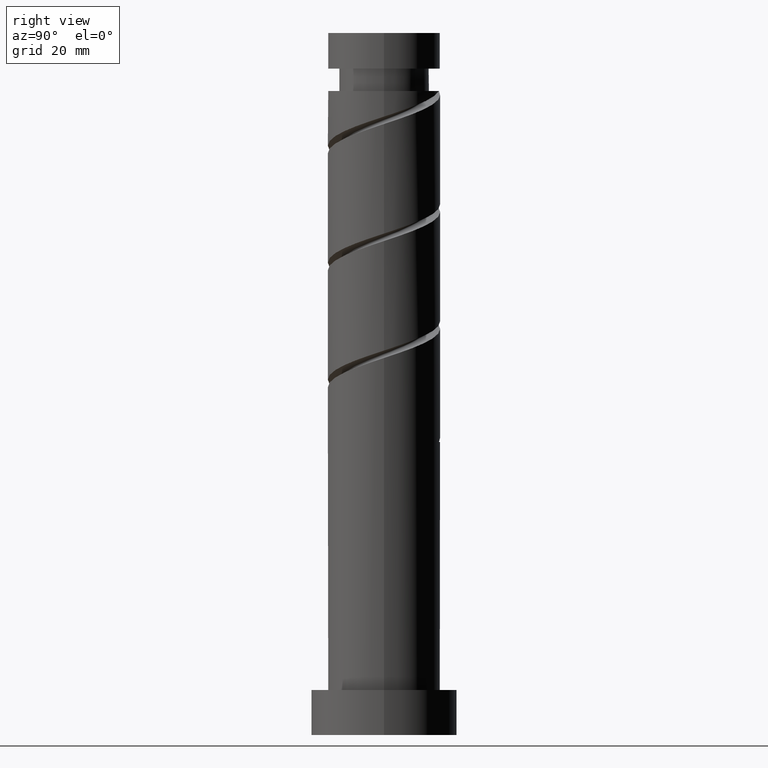
[diagram: clean part render]
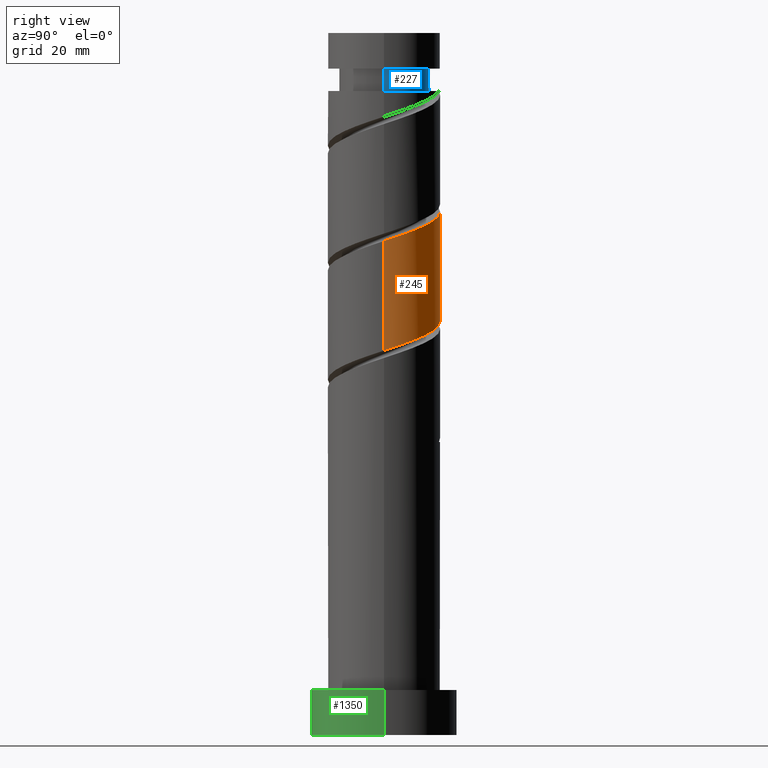
[diagram: same view with three faces highlighted in distinct colors, each labeled with its STEP entity id]
A machine part, right view with three faces highlighted in distinct colors.
Their STEP definitions:

[orange] entity #245 — the highlighted cylindrical surface (partial cylindrical patch) has radius 10 mm, axis along (-0, -0, -1).
#4 = CARTESIAN_POINT ( 'NONE',  ( -9.755398771694949289, 2.709383306013496195, 97.48807990629018150 ) ) ;
#13 = CARTESIAN_POINT ( 'NONE',  ( -3.542142389393700075, 9.484818943287860904, 94.36307990629019571 ) ) ;
#21 = CARTESIAN_POINT ( 'NONE',  ( 1.135787973490359315, 9.935289914203561779, 92.80057990629019571 ) ) ;
#77 = ORIENTED_EDGE ( 'NONE', *, *, #1460, .F. ) ;
#86 = ORIENTED_EDGE ( 'NONE', *, *, #1148, .T. ) ;
#114 = EDGE_CURVE ( 'NONE', #551, #649, #192, .T. ) ;
#119 = CARTESIAN_POINT ( 'NONE',  ( 4.920945116258620189, 8.705417805181468793, 71.96724657295688132 ) ) ;
#160 = CYLINDRICAL_SURFACE ( 'NONE', #733, 10.00000000000000178 ) ;
#192 = LINE ( 'NONE', #1348, #1372 ) ;
#208 = CARTESIAN_POINT ( 'NONE',  ( -1.135787973490353542, 9.935289914203549344, 74.05057990629022413 ) ) ;
#212 = CARTESIAN_POINT ( 'NONE',  ( 10.00000000000001776, 8.815944436524987467E-15, 87.96911079815328094 ) ) ;
#231 = CARTESIAN_POINT ( 'NONE',  ( -10.00000000000000711, 1.271415116015856806E-14, 78.88204901442713890 ) ) ;
#242 = CARTESIAN_POINT ( 'NONE',  ( 10.00000000000001776, 1.005037815259217204, 88.30341537356112269 ) ) ;
#245 = ADVANCED_FACE ( 'NONE', ( #1498 ), #160, .T. ) ;
#253 = CARTESIAN_POINT ( 'NONE',  ( 10.00000000000001954, 8.815944436524987467E-15, 87.96911079815328094 ) ) ;
#271 = CARTESIAN_POINT ( 'NONE',  ( 10.00000000000000355, 0.5697373744643341453, 68.65489343696776814 ) ) ;
#276 = ORIENTED_EDGE ( 'NONE', *, *, #1575, .F. ) ;
#296 = LINE ( 'NONE', #1388, #950 ) ;
#317 = CARTESIAN_POINT ( 'NONE',  ( -9.484818943287846693, 3.542142389393697854, 77.69641323962355273 ) ) ;
#326 = CARTESIAN_POINT ( 'NONE',  ( -2.709383306013491755, 9.755398771694942184, 74.57141323962352430 ) ) ;
#328 = EDGE_LOOP ( 'NONE', ( #276, #86, #77, #1063 ) ) ;
#361 = CARTESIAN_POINT ( 'NONE',  ( -6.299747843123544300, 7.926016667075098887, 95.40474657295686711 ) ) ;
#380 = CARTESIAN_POINT ( 'NONE',  ( 6.758688661379387952, 7.370218964083908197, 90.71724657295690974 ) ) ;
#390 = VERTEX_POINT ( 'NONE', #212 ) ;
#398 = CARTESIAN_POINT ( 'NONE',  ( 7.370218964083903757, 6.758688661379372853, 70.92557990629022413 ) ) ;
#422 = CARTESIAN_POINT ( 'NONE',  ( -6.758688661379372853, 7.370218964083900204, 76.13391323962355273 ) ) ;
#447 = DIRECTION ( 'NONE',  ( -1.000000000000000000, 0.000000000000000000, 0.000000000000000000 ) ) ;
#453 = CARTESIAN_POINT ( 'NONE',  ( -10.00000000000000355, 1.005037815259219869, 78.54774443901931136 ) ) ;
#497 = CARTESIAN_POINT ( 'NONE',  ( -7.370218964083909086, 6.758688661379384399, 95.92557990629020992 ) ) ;
#513 = CARTESIAN_POINT ( 'NONE',  ( -0.4378073590327820064, 10.11518105671217072, 93.32141323962352430 ) ) ;
#520 = DIRECTION ( 'NONE',  ( -0.000000000000000000, -0.000000000000000000, -1.000000000000000000 ) ) ;
#524 = CARTESIAN_POINT ( 'NONE',  ( 5.591360655683670799, 8.440690085044266766, 91.23807990629018150 ) ) ;
#551 = VERTEX_POINT ( 'NONE', #1196 ) ;
#585 = DIRECTION ( 'NONE',  ( -0.000000000000000000, -0.000000000000000000, -1.000000000000000000 ) ) ;
#622 = CARTESIAN_POINT ( 'NONE',  ( 1.989974874213245259, 9.800000000000004263, 73.00891323962353852 ) ) ;
#636 = CARTESIAN_POINT ( 'NONE',  ( -9.935289914203560002, 1.135787973490356872, 98.00891323962355273 ) ) ;
#649 = VERTEX_POINT ( 'NONE', #231 ) ;
#688 = CARTESIAN_POINT ( 'NONE',  ( -4.150371980848577280, 9.098044428369597370, 75.09224657295686711 ) ) ;
#697 = CARTESIAN_POINT ( 'NONE',  ( 0.4378073590327857256, 10.11518105671215473, 73.52974657295690974 ) ) ;
#729 = DIRECTION ( 'NONE',  ( -0.000000000000000000, -0.000000000000000000, -1.000000000000000000 ) ) ;
#733 = AXIS2_PLACEMENT_3D ( 'NONE', #831, #585, #447 ) ;
#739 = CARTESIAN_POINT ( 'NONE',  ( 8.440690085044259661, 5.591360655683659253, 70.40474657295685290 ) ) ;
#748 = CARTESIAN_POINT ( 'NONE',  ( 3.542142389393699187, 9.484818943287846693, 72.48807990629020992 ) ) ;
#754 =( BOUNDED_CURVE ( )  B_SPLINE_CURVE ( 2, ( #937, #453, #1416, #317, #809, #1040, #422, #916, #688, #326, #208, #697, #622, #748, #119, #1370, #398, #739, #1103, #1356, #1347, #271, #1234 ),
 .UNSPECIFIED., .F., .T. ) 
 B_SPLINE_CURVE_WITH_KNOTS ( ( 3, 2, 2, 2, 2, 2, 2, 2, 2, 2, 2, 3 ),
 ( 0.6795322023138552492, 0.6875000000000000000, 0.6999999999999999556, 0.7125000000000000222, 0.7249999999999999778, 0.7375000000000000444, 0.7500000000000000000, 0.7624999999999999556, 0.7750000000000000222, 0.7874999999999999778, 0.8000000000000000444, 0.8045322023138551382 ),
 .UNSPECIFIED. ) 
 CURVE ( )  GEOMETRIC_REPRESENTATION_ITEM ( )  RATIONAL_B_SPLINE_CURVE ( ( 0.9039174447099317389, 0.9019565955404611479, 0.9090909090909095047, 0.8978984914501257908, 0.9090909090909095047, 0.8978984914501257908, 0.9090909090909095047, 0.8978984914501257908, 0.9090909090909095047, 0.8978984914501257908, 0.9090909090909095047, 0.8978984914501257908, 0.9090909090909095047, 0.8978984914501257908, 0.9090909090909095047, 0.8978984914501257908, 0.9090909090909095047, 0.8978984914501257908, 0.9090909090909095047, 0.8978984914501257908, 0.9090909090909095047, 0.9050328050005740366, 0.9039174447099318499 ) ) 
 REPRESENTATION_ITEM ( '' )  );
#756 = CARTESIAN_POINT ( 'NONE',  ( 4.150371980848587938, 9.098044428369613357, 91.75891323962355273 ) ) ;
#809 = CARTESIAN_POINT ( 'NONE',  ( -8.705417805181470570, 4.920945116258618413, 77.17557990629022413 ) ) ;
#831 = CARTESIAN_POINT ( 'NONE',  ( 0.000000000000000000, 0.000000000000000000, 125.0000000000000000 ) ) ;
#859 = CARTESIAN_POINT ( 'NONE',  ( 7.926016667075098887, 6.299747843123542523, 90.19641323962352430 ) ) ;
#868 = VERTEX_POINT ( 'NONE', #1425 ) ;
#879 = CARTESIAN_POINT ( 'NONE',  ( 2.709383306013498416, 9.755398771694949289, 92.27974657295683869 ) ) ;
#889 = CARTESIAN_POINT ( 'NONE',  ( -1.989974874213241041, 9.800000000000016698, 93.84224657295689553 ) ) ;
#916 = CARTESIAN_POINT ( 'NONE',  ( -5.591360655683661918, 8.440690085044259661, 75.61307990629020992 ) ) ;
#937 = CARTESIAN_POINT ( 'NONE',  ( -10.00000000000000711, 1.271415116015856806E-14, 78.88204901442715311 ) ) ;
#950 = VECTOR ( 'NONE', #520, 1000.000000000000000 ) ;
#985 = CARTESIAN_POINT ( 'NONE',  ( 8.705417805181483004, 4.920945116258622853, 89.67557990629019571 ) ) ;
#991 = CARTESIAN_POINT ( 'NONE',  ( -9.098044428369613357, 4.150371980848585274, 96.96724657295689553 ) ) ;
#999 = CARTESIAN_POINT ( 'NONE',  ( 9.484818943287860904, 3.542142389393697854, 89.15474657295685290 ) ) ;
#1040 = CARTESIAN_POINT ( 'NONE',  ( -7.926016667075085564, 6.299747843123536306, 76.65474657295685290 ) ) ;
#1063 = ORIENTED_EDGE ( 'NONE', *, *, #114, .F. ) ;
#1103 = CARTESIAN_POINT ( 'NONE',  ( 9.098044428369599146, 4.150371980848575504, 69.88391323962355273 ) ) ;
#1130 = CARTESIAN_POINT ( 'NONE',  ( 9.800000000000016698, 1.989974874213241485, 88.63391323962352430 ) ) ;
#1148 = EDGE_CURVE ( 'NONE', #390, #868, #296, .T. ) ;
#1196 = CARTESIAN_POINT ( 'NONE',  ( -10.00000000000001599, -5.097654946289957392E-15, 98.38577746481993813 ) ) ;
#1197 =( BOUNDED_CURVE ( )  B_SPLINE_CURVE ( 2, ( #253, #242, #1130, #999, #985, #859, #380, #524, #756, #879, #21, #513, #889, #13, #1471, #361, #497, #1489, #991, #4, #636, #1376, #1248 ),
 .UNSPECIFIED., .F., .T. ) 
 B_SPLINE_CURVE_WITH_KNOTS ( ( 3, 2, 2, 2, 2, 2, 2, 2, 2, 2, 2, 3 ),
 ( 0.4295322023138552492, 0.4375000000000000000, 0.4499999999999999556, 0.4625000000000000222, 0.4749999999999999778, 0.4875000000000000444, 0.5000000000000000000, 0.5124999999999999556, 0.5250000000000000222, 0.5374999999999999778, 0.5500000000000000444, 0.5545322023138552492 ),
 .UNSPECIFIED. ) 
 CURVE ( )  GEOMETRIC_REPRESENTATION_ITEM ( )  RATIONAL_B_SPLINE_CURVE ( ( 0.9039174447099376231, 0.9019565955404671431, 0.9090909090909153889, 0.8978984914501316750, 0.9090909090909153889, 0.8978984914501316750, 0.9090909090909153889, 0.8978984914501316750, 0.9090909090909153889, 0.8978984914501316750, 0.9090909090909153889, 0.8978984914501316750, 0.9090909090909153889, 0.8978984914501316750, 0.9090909090909153889, 0.8978984914501316750, 0.9090909090909153889, 0.8978984914501316750, 0.9090909090909153889, 0.8978984914501316750, 0.9090909090909153889, 0.9050328050005798097, 0.9039174447099376231 ) ) 
 REPRESENTATION_ITEM ( '' )  );
#1234 = CARTESIAN_POINT ( 'NONE',  ( 10.00000000000000533, 1.391359938281503558E-14, 68.46538234776048171 ) ) ;
#1248 = CARTESIAN_POINT ( 'NONE',  ( -10.00000000000001599, -5.097654946289957392E-15, 98.38577746481993813 ) ) ;
#1347 = CARTESIAN_POINT ( 'NONE',  ( 9.935289914203549344, 1.135787973490351321, 68.84224657295688132 ) ) ;
#1348 = CARTESIAN_POINT ( 'NONE',  ( -10.00000000000000178, 0.000000000000000000, 125.0000000000000000 ) ) ;
#1356 = CARTESIAN_POINT ( 'NONE',  ( 9.755398771694940407, 2.709383306013491310, 69.36307990629022413 ) ) ;
#1370 = CARTESIAN_POINT ( 'NONE',  ( 6.299747843123538082, 7.926016667075085564, 71.44641323962356694 ) ) ;
#1372 = VECTOR ( 'NONE', #729, 1000.000000000000000 ) ;
#1376 = CARTESIAN_POINT ( 'NONE',  ( -10.00000000000001776, 0.5697373744643251525, 98.19626637561266591 ) ) ;
#1388 = CARTESIAN_POINT ( 'NONE',  ( 10.00000000000000178, 1.224646799147353454E-15, 125.0000000000000000 ) ) ;
#1416 = CARTESIAN_POINT ( 'NONE',  ( -9.800000000000004263, 1.989974874213242373, 78.21724657295688132 ) ) ;
#1425 = CARTESIAN_POINT ( 'NONE',  ( 10.00000000000000533, 1.391359938281503558E-14, 68.46538234776048171 ) ) ;
#1460 = EDGE_CURVE ( 'NONE', #649, #868, #754, .T. ) ;
#1471 = CARTESIAN_POINT ( 'NONE',  ( -4.920945116258623742, 8.705417805181483004, 94.88391323962355273 ) ) ;
#1489 = CARTESIAN_POINT ( 'NONE',  ( -8.440690085044268542, 5.591360655683670799, 96.44641323962351009 ) ) ;
#1498 = FACE_OUTER_BOUND ( 'NONE', #328, .T. ) ;
#1575 = EDGE_CURVE ( 'NONE', #390, #551, #1197, .T. ) ;

[blue] entity #227 — the highlighted cylindrical surface (partial cylindrical patch) has radius 8 mm, axis along (-0, -0, -1).
#11 = DIRECTION ( 'NONE',  ( -1.000000000000000000, 0.000000000000000000, 0.000000000000000000 ) ) ;
#103 = ORIENTED_EDGE ( 'NONE', *, *, #449, .T. ) ;
#138 = DIRECTION ( 'NONE',  ( -1.000000000000000000, 0.000000000000000000, 0.000000000000000000 ) ) ;
#140 = CARTESIAN_POINT ( 'NONE',  ( -8.000000000000000000, 0.000000000000000000, 114.6755799062902099 ) ) ;
#149 = CARTESIAN_POINT ( 'NONE',  ( -3.469446951953613006E-15, 8.000000000000000000, 114.6755799062902099 ) ) ;
#184 = LINE ( 'NONE', #1046, #1077 ) ;
#202 = AXIS2_PLACEMENT_3D ( 'NONE', #1191, #931, #682 ) ;
#227 = ADVANCED_FACE ( 'NONE', ( #561 ), #1051, .T. ) ;
#239 = CARTESIAN_POINT ( 'NONE',  ( 0.000000000000000000, 0.000000000000000000, 0.000000000000000000 ) ) ;
#240 = DIRECTION ( 'NONE',  ( -0.000000000000000000, -0.000000000000000000, -1.000000000000000000 ) ) ;
#256 = CIRCLE ( 'NONE', #1554, 8.000000000000000000 ) ;
#332 = ORIENTED_EDGE ( 'NONE', *, *, #1386, .F. ) ;
#338 = DIRECTION ( 'NONE',  ( -1.000000000000000000, 0.000000000000000000, 0.000000000000000000 ) ) ;
#372 = EDGE_CURVE ( 'NONE', #1362, #919, #1556, .T. ) ;
#449 = EDGE_CURVE ( 'NONE', #1227, #919, #1528, .T. ) ;
#463 = AXIS2_PLACEMENT_3D ( 'NONE', #239, #240, #11 ) ;
#484 = CIRCLE ( 'NONE', #202, 8.000000000000000000 ) ;
#519 = EDGE_CURVE ( 'NONE', #1246, #1362, #484, .T. ) ;
#561 = FACE_OUTER_BOUND ( 'NONE', #1565, .T. ) ;
#563 = VECTOR ( 'NONE', #708, 1000.000000000000000 ) ;
#582 = DIRECTION ( 'NONE',  ( -0.000000000000000000, -0.000000000000000000, -1.000000000000000000 ) ) ;
#682 = DIRECTION ( 'NONE',  ( -1.000000000000000000, 0.000000000000000000, 0.000000000000000000 ) ) ;
#691 = CARTESIAN_POINT ( 'NONE',  ( 8.000000000000000000, 9.797174393178825657E-16, 0.000000000000000000 ) ) ;
#706 = ORIENTED_EDGE ( 'NONE', *, *, #1526, .T. ) ;
#708 = DIRECTION ( 'NONE',  ( -0.000000000000000000, -0.000000000000000000, -1.000000000000000000 ) ) ;
#750 = CARTESIAN_POINT ( 'NONE',  ( 8.000000000000000000, 9.797174393178825657E-16, 118.6755799062902099 ) ) ;
#821 = DIRECTION ( 'NONE',  ( -0.000000000000000000, -0.000000000000000000, -1.000000000000000000 ) ) ;
#896 = ORIENTED_EDGE ( 'NONE', *, *, #519, .F. ) ;
#919 = VERTEX_POINT ( 'NONE', #1070 ) ;
#929 = ORIENTED_EDGE ( 'NONE', *, *, #372, .F. ) ;
#931 = DIRECTION ( 'NONE',  ( -0.000000000000000000, -0.000000000000000000, -1.000000000000000000 ) ) ;
#1002 = VERTEX_POINT ( 'NONE', #1560 ) ;
#1046 = CARTESIAN_POINT ( 'NONE',  ( -8.000000000000000000, 0.000000000000000000, 0.000000000000000000 ) ) ;
#1051 = CYLINDRICAL_SURFACE ( 'NONE', #463, 8.000000000000000000 ) ;
#1070 = CARTESIAN_POINT ( 'NONE',  ( 8.000000000000000000, 9.797174393178825657E-16, 114.6755799062902099 ) ) ;
#1077 = VECTOR ( 'NONE', #582, 1000.000000000000000 ) ;
#1191 = CARTESIAN_POINT ( 'NONE',  ( 0.000000000000000000, 0.000000000000000000, 114.6755799062902099 ) ) ;
#1203 = AXIS2_PLACEMENT_3D ( 'NONE', #1428, #821, #338 ) ;
#1227 = VERTEX_POINT ( 'NONE', #750 ) ;
#1242 = CARTESIAN_POINT ( 'NONE',  ( 0.000000000000000000, 0.000000000000000000, 118.6755799062902099 ) ) ;
#1246 = VERTEX_POINT ( 'NONE', #140 ) ;
#1362 = VERTEX_POINT ( 'NONE', #149 ) ;
#1386 = EDGE_CURVE ( 'NONE', #1002, #1246, #184, .T. ) ;
#1428 = CARTESIAN_POINT ( 'NONE',  ( 0.000000000000000000, 0.000000000000000000, 114.6755799062902099 ) ) ;
#1478 = DIRECTION ( 'NONE',  ( -0.000000000000000000, -0.000000000000000000, -1.000000000000000000 ) ) ;
#1526 = EDGE_CURVE ( 'NONE', #1002, #1227, #256, .T. ) ;
#1528 = LINE ( 'NONE', #691, #563 ) ;
#1554 = AXIS2_PLACEMENT_3D ( 'NONE', #1242, #1478, #138 ) ;
#1556 = CIRCLE ( 'NONE', #1203, 8.000000000000000000 ) ;
#1560 = CARTESIAN_POINT ( 'NONE',  ( -8.000000000000000000, 0.000000000000000000, 118.6755799062902099 ) ) ;
#1565 = EDGE_LOOP ( 'NONE', ( #706, #103, #929, #896, #332 ) ) ;

[green] entity #1350 — the highlighted cylindrical surface (partial cylindrical patch) has radius 13 mm, axis along (-0, -0, -1).
#55 = VECTOR ( 'NONE', #1033, 1000.000000000000000 ) ;
#145 = CIRCLE ( 'NONE', #655, 13.00000000000000178 ) ;
#156 = CYLINDRICAL_SURFACE ( 'NONE', #377, 13.00000000000000178 ) ;
#165 = FACE_OUTER_BOUND ( 'NONE', #368, .T. ) ;
#244 = ORIENTED_EDGE ( 'NONE', *, *, #993, .T. ) ;
#255 = VECTOR ( 'NONE', #1448, 1000.000000000000000 ) ;
#291 = VERTEX_POINT ( 'NONE', #1420 ) ;
#362 = EDGE_CURVE ( 'NONE', #1459, #1027, #979, .T. ) ;
#368 = EDGE_LOOP ( 'NONE', ( #1548, #1072, #244, #1368 ) ) ;
#377 = AXIS2_PLACEMENT_3D ( 'NONE', #1512, #758, #416 ) ;
#416 = DIRECTION ( 'NONE',  ( -1.000000000000000000, 0.000000000000000000, 0.000000000000000000 ) ) ;
#459 = CARTESIAN_POINT ( 'NONE',  ( -13.00000000000000178, 0.000000000000000000, 8.000000000000000000 ) ) ;
#629 = DIRECTION ( 'NONE',  ( 1.000000000000000000, 0.000000000000000000, 0.000000000000000000 ) ) ;
#655 = AXIS2_PLACEMENT_3D ( 'NONE', #1494, #1118, #629 ) ;
#758 = DIRECTION ( 'NONE',  ( -0.000000000000000000, -0.000000000000000000, -1.000000000000000000 ) ) ;
#782 = VERTEX_POINT ( 'NONE', #789 ) ;
#789 = CARTESIAN_POINT ( 'NONE',  ( -13.00000000000000178, 0.000000000000000000, 0.000000000000000000 ) ) ;
#946 = CARTESIAN_POINT ( 'NONE',  ( -13.00000000000000178, 0.000000000000000000, 8.000000000000000000 ) ) ;
#969 = LINE ( 'NONE', #459, #255 ) ;
#979 = CIRCLE ( 'NONE', #1079, 13.00000000000000178 ) ;
#993 = EDGE_CURVE ( 'NONE', #1459, #782, #969, .T. ) ;
#1027 = VERTEX_POINT ( 'NONE', #1321 ) ;
#1033 = DIRECTION ( 'NONE',  ( -0.000000000000000000, -0.000000000000000000, -1.000000000000000000 ) ) ;
#1065 = CARTESIAN_POINT ( 'NONE',  ( 0.000000000000000000, 0.000000000000000000, 8.000000000000000000 ) ) ;
#1072 = ORIENTED_EDGE ( 'NONE', *, *, #362, .F. ) ;
#1079 = AXIS2_PLACEMENT_3D ( 'NONE', #1065, #1318, #1309 ) ;
#1118 = DIRECTION ( 'NONE',  ( 0.000000000000000000, 0.000000000000000000, 1.000000000000000000 ) ) ;
#1144 = LINE ( 'NONE', #1503, #55 ) ;
#1268 = EDGE_CURVE ( 'NONE', #1027, #291, #1144, .T. ) ;
#1309 = DIRECTION ( 'NONE',  ( 1.000000000000000000, 0.000000000000000000, 0.000000000000000000 ) ) ;
#1318 = DIRECTION ( 'NONE',  ( 0.000000000000000000, 0.000000000000000000, 1.000000000000000000 ) ) ;
#1321 = CARTESIAN_POINT ( 'NONE',  ( 13.00000000000000178, 1.592040838891559293E-15, 8.000000000000000000 ) ) ;
#1350 = ADVANCED_FACE ( 'NONE', ( #165 ), #156, .T. ) ;
#1368 = ORIENTED_EDGE ( 'NONE', *, *, #1481, .T. ) ;
#1420 = CARTESIAN_POINT ( 'NONE',  ( 13.00000000000000178, 1.592040838891559293E-15, 0.000000000000000000 ) ) ;
#1448 = DIRECTION ( 'NONE',  ( -0.000000000000000000, -0.000000000000000000, -1.000000000000000000 ) ) ;
#1459 = VERTEX_POINT ( 'NONE', #946 ) ;
#1481 = EDGE_CURVE ( 'NONE', #782, #291, #145, .T. ) ;
#1494 = CARTESIAN_POINT ( 'NONE',  ( 0.000000000000000000, 0.000000000000000000, 0.000000000000000000 ) ) ;
#1503 = CARTESIAN_POINT ( 'NONE',  ( 13.00000000000000178, 1.592040838891559293E-15, 8.000000000000000000 ) ) ;
#1512 = CARTESIAN_POINT ( 'NONE',  ( 0.000000000000000000, 0.000000000000000000, 8.000000000000000000 ) ) ;
#1548 = ORIENTED_EDGE ( 'NONE', *, *, #1268, .F. ) ;